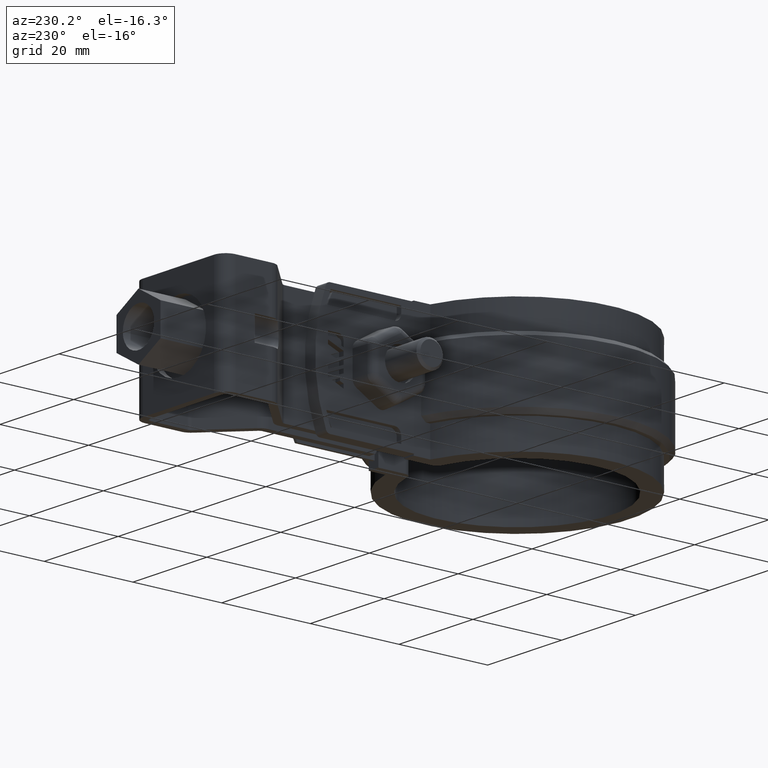
[diagram: clean part render]
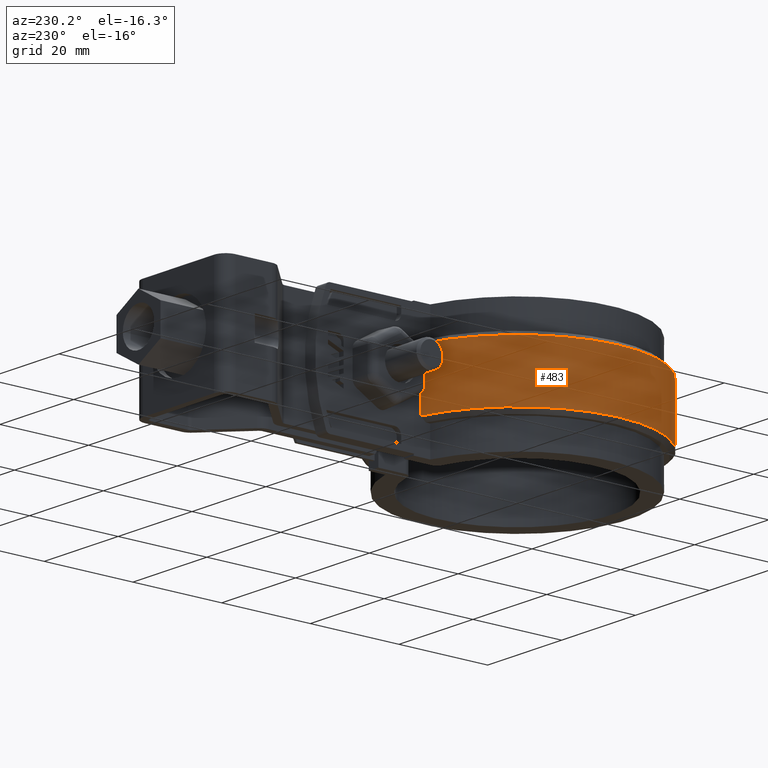
[diagram: same view with one face highlighted and labeled with its STEP entity id]
A machine part, auxiliary view. The second image highlights one B-rep face of the part: STEP entity #483.
In plain terms, the highlighted cylindrical surface (partial cylindrical patch) has radius 27.445 mm, axis along (0, 0, 1).
Its self-contained STEP definition (entity closure, byte-faithful):
#483 = ADVANCED_FACE( '', ( #975 ), #976, .T. );
#975 = FACE_OUTER_BOUND( '', #2068, .T. );
#976 = CYLINDRICAL_SURFACE( '', #2069, 27.4450000000000 );
#2068 = EDGE_LOOP( '', ( #5465, #5466, #5467, #5468 ) );
#2069 = AXIS2_PLACEMENT_3D( '', #5469, #5470, #5471 );
#5465 = ORIENTED_EDGE( '', *, *, #7527, .F. );
#5466 = ORIENTED_EDGE( '', *, *, #7661, .T. );
#5467 = ORIENTED_EDGE( '', *, *, #7628, .T. );
#5468 = ORIENTED_EDGE( '', *, *, #7492, .T. );
#5469 = CARTESIAN_POINT( '', ( -8.67361737988404E-016, -3.46944695195361E-015, -20.0000000000000 ) );
#5470 = DIRECTION( '', ( 0.000000000000000, 0.000000000000000, 1.00000000000000 ) );
#5471 = DIRECTION( '', ( 0.213196982952784, 0.977009235606210, 0.000000000000000 ) );
#7492 = EDGE_CURVE( '', #8570, #8579, #8582, .T. );
#7527 = EDGE_CURVE( '', #8646, #8579, #8648, .F. );
#7628 = EDGE_CURVE( '', #8800, #8570, #8826, .T. );
#7661 = EDGE_CURVE( '', #8646, #8800, #8879, .T. );
#8570 = VERTEX_POINT( '', #11068 );
#8579 = VERTEX_POINT( '', #11083 );
#8582 = CIRCLE( '', #11089, 27.4450000000000 );
#8646 = VERTEX_POINT( '', #11294 );
#8648 = LINE( '', #11299, #11300 );
#8800 = VERTEX_POINT( '', #12254 );
#8826 = LINE( '', #12311, #12312 );
#8879 = CIRCLE( '', #12767, 27.4450000000000 );
#11068 = CARTESIAN_POINT( '', ( -15.9691081303572, -22.3207439508848, -6.00000000000002 ) );
#11083 = CARTESIAN_POINT( '', ( -6.09999999999999, 26.7585131313382, -6.00000000000000 ) );
#11089 = AXIS2_PLACEMENT_3D( '', #14734, #14735, #14736 );
#11294 = CARTESIAN_POINT( '', ( -6.09999999999999, 26.7585131313382, -19.0000000000000 ) );
#11299 = CARTESIAN_POINT( '', ( -6.09999999999999, 26.7585131313382, -20.0000000000000 ) );
#11300 = VECTOR( '', #14760, 1000.00000000000 );
#12254 = CARTESIAN_POINT( '', ( -15.9691081303572, -22.3207439508848, -19.0000000000000 ) );
#12311 = CARTESIAN_POINT( '', ( -15.9691081303572, -22.3207439508848, -20.0000000000000 ) );
#12312 = VECTOR( '', #14865, 1000.00000000000 );
#12767 = AXIS2_PLACEMENT_3D( '', #14883, #14884, #14885 );
#14734 = CARTESIAN_POINT( '', ( -8.67361737988404E-016, -3.46944695195361E-015, -6.00000000000000 ) );
#14735 = DIRECTION( '', ( 0.000000000000000, 0.000000000000000, -1.00000000000000 ) );
#14736 = DIRECTION( '', ( -1.00000000000000, 0.000000000000000, 0.000000000000000 ) );
#14760 = DIRECTION( '', ( 0.000000000000000, 0.000000000000000, -1.00000000000000 ) );
#14865 = DIRECTION( '', ( 0.000000000000000, 0.000000000000000, 1.00000000000000 ) );
#14883 = CARTESIAN_POINT( '', ( -8.67361737988404E-016, -3.46944695195361E-015, -19.0000000000000 ) );
#14884 = DIRECTION( '', ( 0.000000000000000, 0.000000000000000, 1.00000000000000 ) );
#14885 = DIRECTION( '', ( 1.00000000000000, 0.000000000000000, 0.000000000000000 ) );